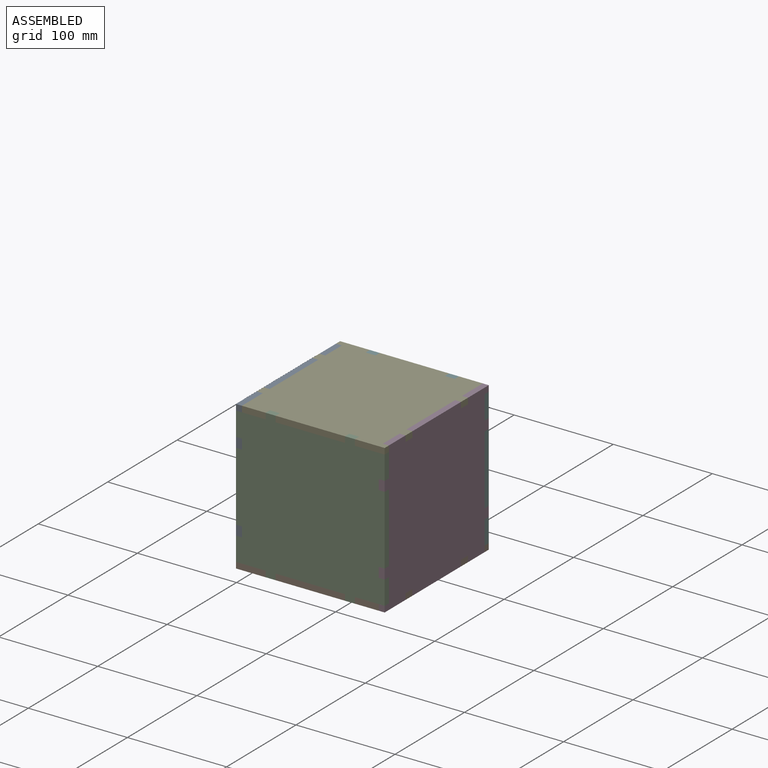
[diagram: assembled view]
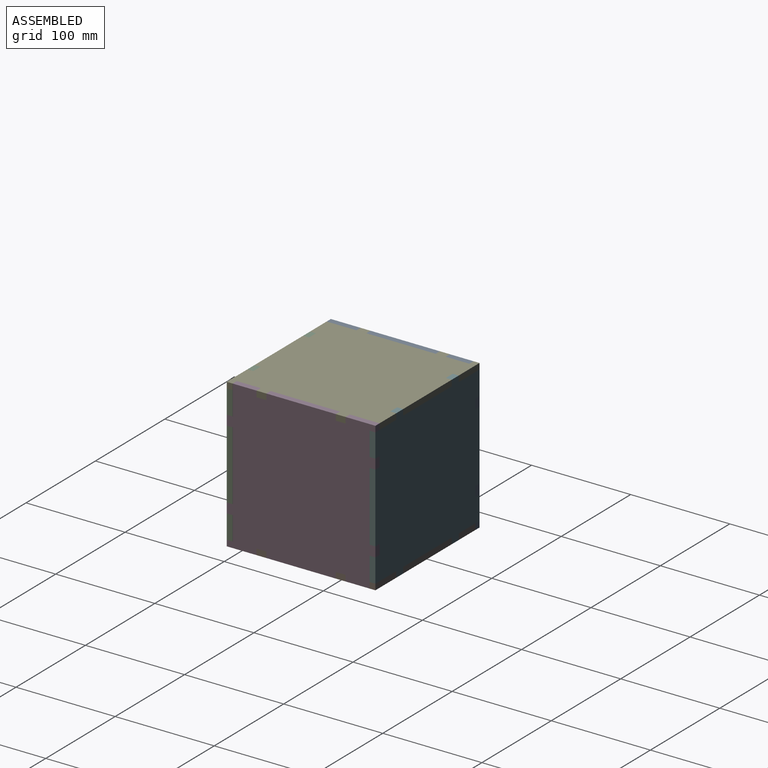
[diagram: assembled view, second angle]
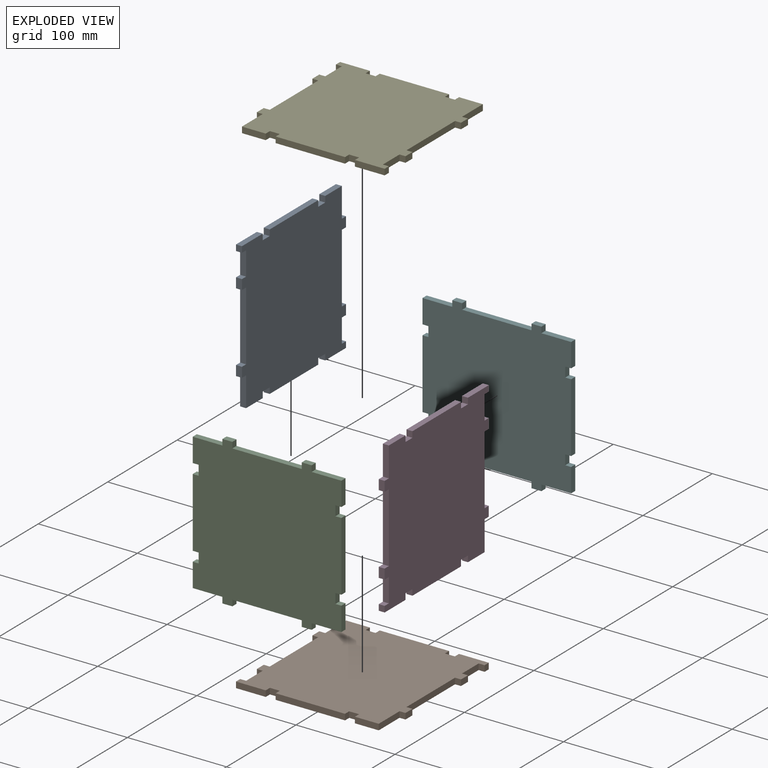
[diagram: exploded view]
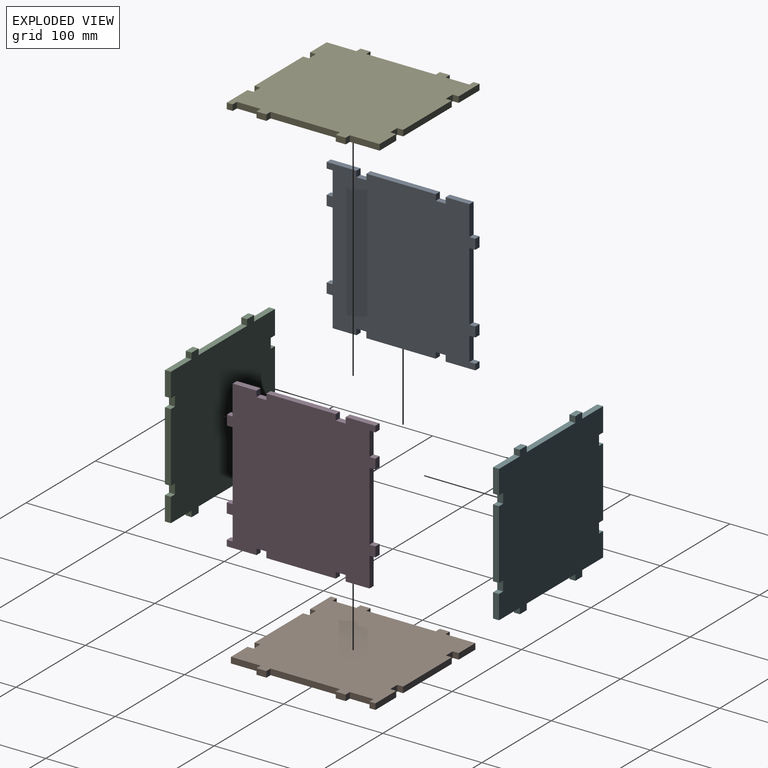
[diagram: exploded view, second angle]
ASSEMBLY  parts=6 mates=5
PART A: 42 faces, bbox 150x150x6 mm
  f0: plane 10x6mm, normal (-1,0,0), area 60mm2, adj f1,f39,f40,f41
  f1: plane 6x6mm, normal (0,-1,0), area 36mm2, adj f0,f2,f40,f41
  f2: plane 70x6mm, normal (-1,0,0), area 420mm2, adj f1,f3,f40,f41
  f3: plane 6x6mm, normal (0,1,0), area 36mm2, adj f2,f4,f40,f41
  f4: plane 10x6mm, normal (-1,0,0), area 60mm2, adj f3,f5,f40,f41
  f5: plane 6x6mm, normal (0,-1,0), area 36mm2, adj f4,f6,f40,f41
  f6: plane 24x6mm, normal (-1,0,0), area 144mm2, adj f5,f7,f40,f41
  f7: plane 6x6mm, normal (0,1,0), area 36mm2, adj f6,f8,f40,f41
  f8: plane 6x6mm, normal (-1,0,0), area 36mm2, adj f7,f9,f40,f41
  f9: plane 30x6mm, normal (0,-1,0), area 180mm2, adj f8,f10,f40,f41
  f10: plane 6x6mm, normal (1,0,0), area 36mm2, adj f9,f11,f40,f41
  f11: plane 10x6mm, normal (0,-1,0), area 60mm2, adj f10,f12,f40,f41
  f12: plane 6x6mm, normal (-1,0,0), area 36mm2, adj f11,f13,f40,f41
  f13: plane 70x6mm, normal (0,-1,0), area 420mm2, adj f12,f14,f40,f41
  f14: plane 6x6mm, normal (1,0,0), area 36mm2, adj f13,f15,f40,f41
  f15: plane 10x6mm, normal (0,-1,0), area 60mm2, adj f14,f16,f40,f41
  f16: plane 6x6mm, normal (-1,0,0), area 36mm2, adj f15,f17,f40,f41
  f17: plane 24x6mm, normal (0,-1,0), area 144mm2, adj f16,f18,f40,f41
  f18: plane 30x6mm, normal (1,0,0), area 180mm2, adj f17,f19,f40,f41
  f19: plane 6x6mm, normal (0,-1,0), area 36mm2, adj f18,f20,f40,f41
  f20: plane 10x6mm, normal (1,0,0), area 60mm2, adj f19,f21,f40,f41
  f21: plane 6x6mm, normal (0,1,0), area 36mm2, adj f20,f22,f40,f41
  f22: plane 70x6mm, normal (1,0,0), area 420mm2, adj f21,f23,f40,f41
  f23: plane 6x6mm, normal (0,-1,0), area 36mm2, adj f22,f24,f40,f41
  f24: plane 10x6mm, normal (1,0,0), area 60mm2, adj f23,f25,f40,f41
  f25: plane 6x6mm, normal (0,1,0), area 36mm2, adj f24,f26,f40,f41
  f26: plane 24x6mm, normal (1,0,0), area 144mm2, adj f25,f27,f40,f41
  f27: plane 6x6mm, normal (0,-1,0), area 36mm2, adj f26,f28,f40,f41
  f28: plane 6x6mm, normal (1,0,0), area 36mm2, adj f27,f29,f40,f41
  f29: plane 30x6mm, normal (0,1,0), area 180mm2, adj f28,f30,f40,f41
  f30: plane 6x6mm, normal (-1,0,0), area 36mm2, adj f29,f31,f40,f41
  f31: plane 10x6mm, normal (0,1,0), area 60mm2, adj f30,f32,f40,f41
  f32: plane 6x6mm, normal (1,0,0), area 36mm2, adj f31,f33,f40,f41
  f33: plane 70x6mm, normal (0,1,0), area 420mm2, adj f32,f34,f40,f41
  f34: plane 6x6mm, normal (-1,0,0), area 36mm2, adj f33,f35,f40,f41
  f35: plane 10x6mm, normal (0,1,0), area 60mm2, adj f34,f36,f40,f41
  f36: plane 6x6mm, normal (1,0,0), area 36mm2, adj f35,f37,f40,f41
  f37: plane 24x6mm, normal (0,1,0), area 144mm2, adj f36,f38,f40,f41
  f38: plane 30x6mm, normal (-1,0,0), area 180mm2, adj f37,f39,f40,f41
  f39: plane 6x6mm, normal (0,1,0), area 36mm2, adj f0,f38,f40,f41
  f40: plane 150x150mm, normal (0,0,1), area 20772mm2, adj f0,f1,f2,f3,f4,f5,f6,f7
  f41: plane 150x150mm, normal (0,0,-1), area 20772mm2, adj f0,f1,f2,f3,f4,f5,f6,f7
PART B: same geometry as A
PART C: 38 faces, bbox 150x150x6 mm
  f0: plane 10x6mm, normal (0,1,0), area 60mm2, adj f1,f35,f36,f37
  f1: plane 6x6mm, normal (1,0,0), area 36mm2, adj f0,f2,f36,f37
  f2: plane 24x6mm, normal (0,1,0), area 144mm2, adj f1,f3,f36,f37
  f3: plane 30x6mm, normal (-1,0,0), area 180mm2, adj f2,f4,f36,f37
  f4: plane 6x6mm, normal (0,1,0), area 36mm2, adj f3,f5,f36,f37
  f5: plane 10x6mm, normal (-1,0,0), area 60mm2, adj f4,f6,f36,f37
  f6: plane 6x6mm, normal (0,-1,0), area 36mm2, adj f5,f7,f36,f37
  f7: plane 70x6mm, normal (-1,0,0), area 420mm2, adj f6,f8,f36,f37
  f8: plane 6x6mm, normal (0,1,0), area 36mm2, adj f7,f9,f36,f37
  f9: plane 10x6mm, normal (-1,0,0), area 60mm2, adj f8,f10,f36,f37
  f10: plane 6x6mm, normal (0,-1,0), area 36mm2, adj f9,f11,f36,f37
  f11: plane 30x6mm, normal (-1,0,0), area 180mm2, adj f10,f12,f36,f37
  f12: plane 24x6mm, normal (0,-1,0), area 144mm2, adj f11,f13,f36,f37
  f13: plane 6x6mm, normal (1,0,0), area 36mm2, adj f12,f14,f36,f37
  f14: plane 10x6mm, normal (0,-1,0), area 60mm2, adj f13,f15,f36,f37
  f15: plane 6x6mm, normal (-1,0,0), area 36mm2, adj f14,f16,f36,f37
  f16: plane 70x6mm, normal (0,-1,0), area 420mm2, adj f15,f17,f36,f37
  f17: plane 6x6mm, normal (1,0,0), area 36mm2, adj f16,f18,f36,f37
  f18: plane 10x6mm, normal (0,-1,0), area 60mm2, adj f17,f19,f36,f37
  f19: plane 6x6mm, normal (-1,0,0), area 36mm2, adj f18,f20,f36,f37
  f20: plane 24x6mm, normal (0,-1,0), area 144mm2, adj f19,f21,f36,f37
  f21: plane 30x6mm, normal (1,0,0), area 180mm2, adj f20,f22,f36,f37
  f22: plane 6x6mm, normal (0,-1,0), area 36mm2, adj f21,f23,f36,f37
  f23: plane 10x6mm, normal (1,0,0), area 60mm2, adj f22,f24,f36,f37
  f24: plane 6x6mm, normal (0,1,0), area 36mm2, adj f23,f25,f36,f37
  f25: plane 70x6mm, normal (1,0,0), area 420mm2, adj f24,f26,f36,f37
  f26: plane 6x6mm, normal (0,-1,0), area 36mm2, adj f25,f27,f36,f37
  f27: plane 10x6mm, normal (1,0,0), area 60mm2, adj f26,f28,f36,f37
  f28: plane 6x6mm, normal (0,1,0), area 36mm2, adj f27,f29,f36,f37
  f29: plane 30x6mm, normal (1,0,0), area 180mm2, adj f28,f30,f36,f37
  f30: plane 24x6mm, normal (0,1,0), area 144mm2, adj f29,f31,f36,f37
  f31: plane 6x6mm, normal (-1,0,0), area 36mm2, adj f30,f32,f36,f37
  f32: plane 10x6mm, normal (0,1,0), area 60mm2, adj f31,f33,f36,f37
  f33: plane 6x6mm, normal (1,0,0), area 36mm2, adj f32,f34,f36,f37
  f34: plane 70x6mm, normal (0,1,0), area 420mm2, adj f33,f35,f36,f37
  f35: plane 6x6mm, normal (-1,0,0), area 36mm2, adj f0,f34,f36,f37
  f36: plane 150x150mm, normal (0,0,1), area 20700mm2, adj f0,f1,f2,f3,f4,f5,f6,f7
  f37: plane 150x150mm, normal (0,0,-1), area 20700mm2, adj f0,f1,f2,f3,f4,f5,f6,f7
PART D: same geometry as A
PART E: same geometry as A
PART F: same geometry as C
PLACE A rot(axis=(-0.58,-0.58,0.58),120deg) t=(-71.04,-1.31,71.8)mm
PLACE B t=(-2.04,-1.31,-3.2)mm
PLACE C rot(axis=(-0.58,0.58,0.58),120deg) t=(-6.91,-76.31,75.99)mm
PLACE D rot(axis=(0.58,0.58,0.58),120deg) t=(66.96,-1.31,71.8)mm
PLACE E rot(axis=(1,0,0),180deg) t=(-2.04,-1.31,146.8)mm
PLACE F rot(axis=(0.58,-0.58,0.58),120deg) t=(-6.91,73.69,67.61)mm
MATE fastened E.f40 <-> D.f35  axis (0,0,-1) through (72.96,-41.31,140.8)mm
MATE fastened C.f36 <-> E.f31  axis (0,1,0) through (37.96,-70.31,146.8)mm
MATE fastened D.f11 <-> B.f40  axis (0,0,-1) through (72.96,-41.31,2.8)mm
MATE fastened A.f31 <-> B.f40  axis (0,0,-1) through (-77.04,38.69,2.8)mm
MATE fastened F.f36 <-> B.f35  axis (0,-1,0) through (-42.04,67.69,-3.2)mm
